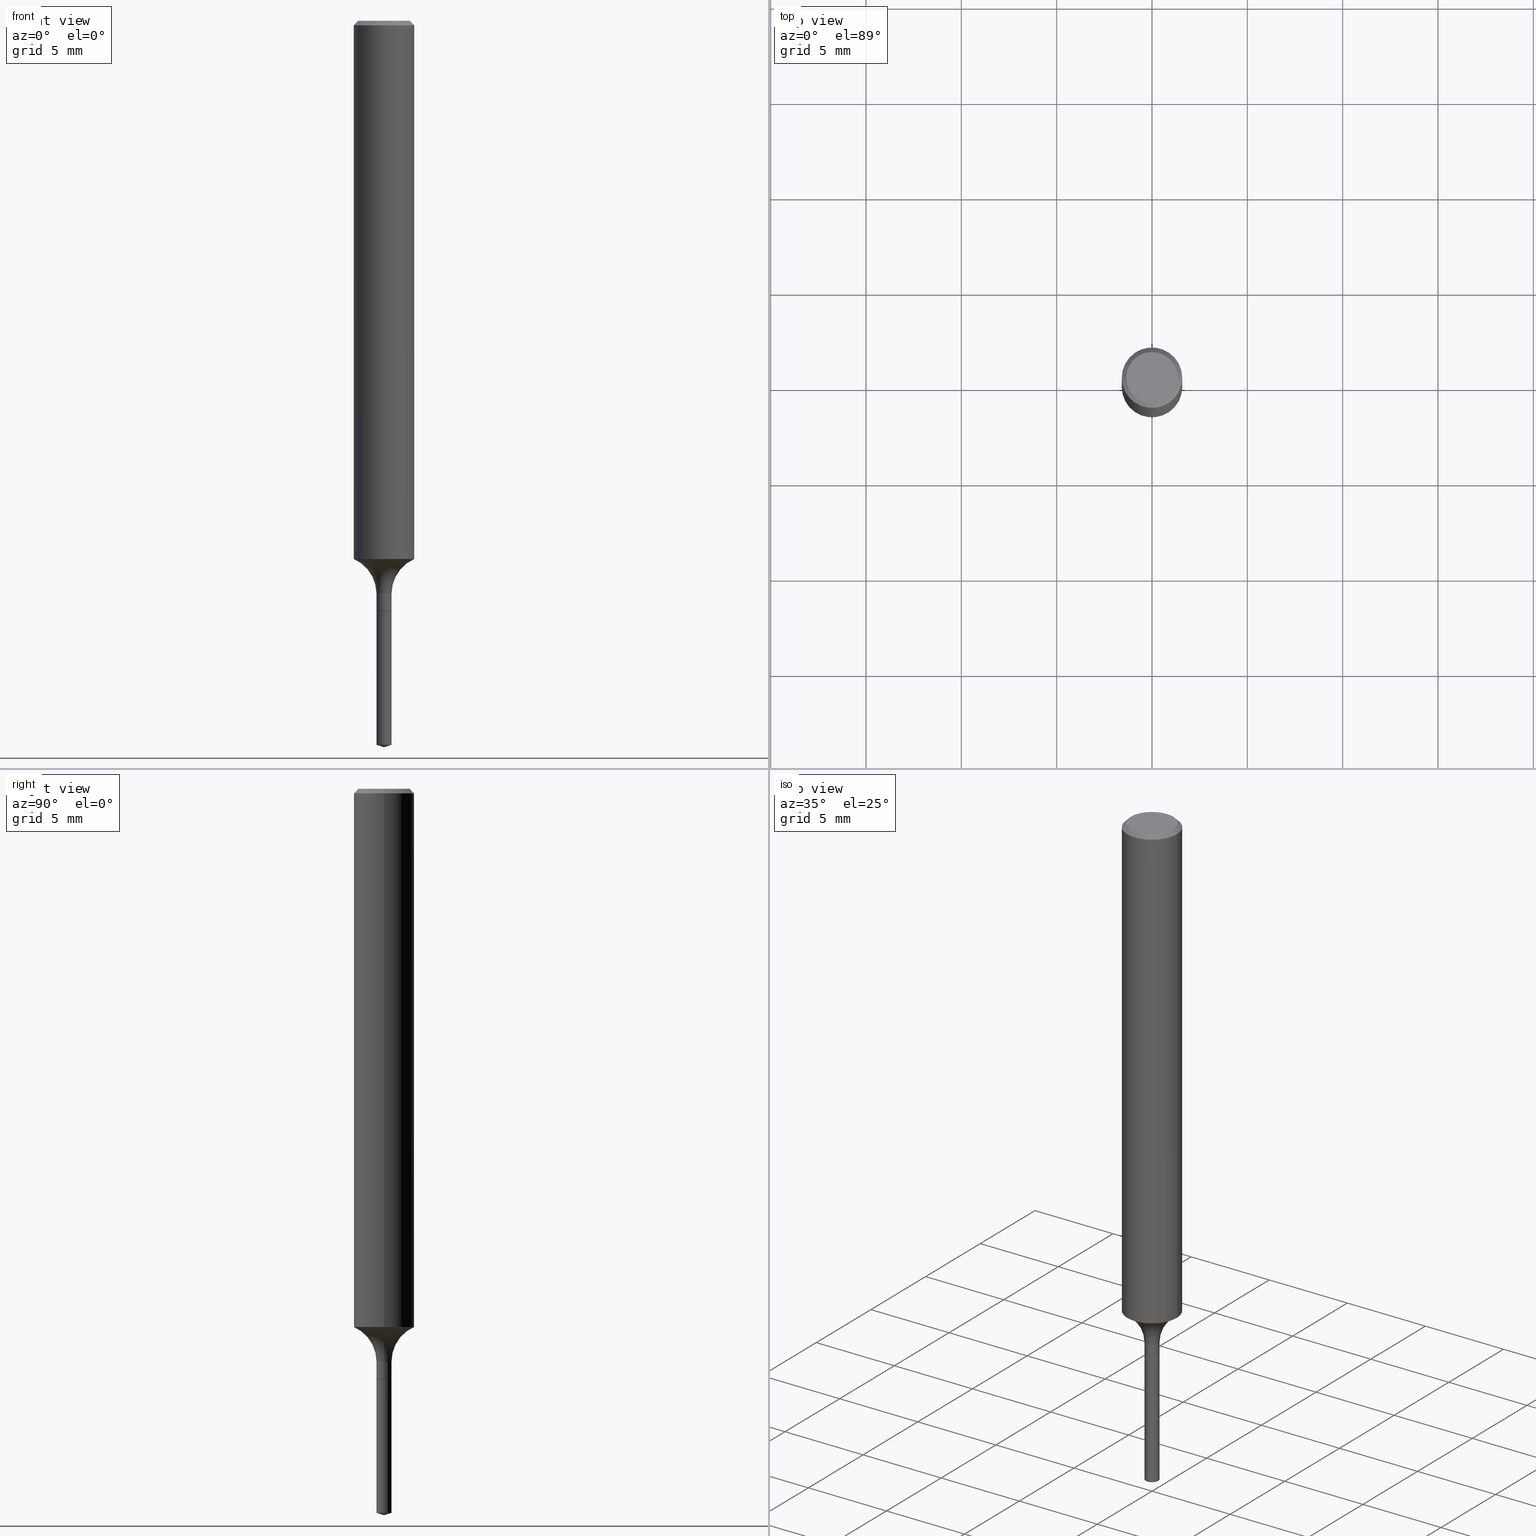
[diagram: canonical four-view strip — front | top / right | iso, engineering-drawing reading convention]
A machine part, canonical four-view strip (front | top / right | iso — engineering-drawing reading convention). The complete STEP part file that produces these views, byte-faithful:
ISO-10303-21;
HEADER;
FILE_DESCRIPTION (( 'STEP AP203' ),
    '1' );
FILE_NAME ('52301.STEP',
    '2024-04-19T13:29:42',
    ( '' ),
    ( '' ),
    'SwSTEP 2.0',
    'SolidWorks 2023',
    '' );
FILE_SCHEMA (( 'CONFIG_CONTROL_DESIGN' ));
ENDSEC;

DATA;
#1 = CONICAL_SURFACE ( 'NONE', #16, 0.01509999999999999884, 0.7853981633973949883 ) ;
#2 = DIRECTION ( 'NONE',  ( -2.445468806185136597E-29, 3.491481338843145583E-15, 1.000000000000000000 ) ) ;
#3 = CARTESIAN_POINT ( 'NONE',  ( 2.892500503955779168E-29, -4.129724127583672136E-15, -1.182799999999999851 ) ) ;
#4 = DIRECTION ( 'NONE',  ( -2.445468806185136877E-29, 3.491481338843145188E-15, 1.000000000000000000 ) ) ;
#5 = CC_DESIGN_PERSON_AND_ORGANIZATION_ASSIGNMENT ( #255, #429, ( #329 ) ) ;
#6 = CARTESIAN_POINT ( 'NONE',  ( 0.000000000000000000, 0.000000000000000000, 0.000000000000000000 ) ) ;
#7 = DIRECTION ( 'NONE',  ( -2.404617780644374598E-29, 3.549982332513496351E-15, 1.000000000000000000 ) ) ;
#8 = PERSON_AND_ORGANIZATION ( #333, #158 ) ;
#9 = LINE ( 'NONE', #126, #301 ) ;
#10 = AXIS2_PLACEMENT_3D ( 'NONE', #224, #331, #488 ) ;
#11 = EDGE_CURVE ( 'NONE', #188, #73, #403, .T. ) ;
#12 = FACE_OUTER_BOUND ( 'NONE', #484, .T. ) ;
#13 = DATE_AND_TIME ( #154, #141 ) ;
#14 = FACE_OUTER_BOUND ( 'NONE', #489, .T. ) ;
#15 = AXIS2_PLACEMENT_3D ( 'NONE', #436, #53, #349 ) ;
#16 = AXIS2_PLACEMENT_3D ( 'NONE', #189, #145, #291 ) ;
#17 = PERSON_AND_ORGANIZATION ( #333, #158 ) ;
#18 = DIRECTION ( 'NONE',  ( -2.404617780644374598E-29, 3.549982332513496351E-15, 1.000000000000000000 ) ) ;
#19 = ADVANCED_FACE ( 'NONE', ( #109 ), #370, .T. ) ;
#20 = CARTESIAN_POINT ( 'NONE',  ( 2.980292834097825835E-29, -4.255068307648140826E-15, -1.218699999999999894 ) ) ;
#21 = ORIENTED_EDGE ( 'NONE', *, *, #417, .F. ) ;
#22 = CARTESIAN_POINT ( 'NONE',  ( 2.979070099694733034E-29, -4.253322566978719322E-15, -1.218199999999999950 ) ) ;
#23 = ORIENTED_EDGE ( 'NONE', *, *, #383, .F. ) ;
#24 = PERSON_AND_ORGANIZATION_ROLE ( 'classification_officer' ) ;
#25 = AXIS2_PLACEMENT_3D ( 'NONE', #160, #45, #416 ) ;
#26 = CARTESIAN_POINT ( 'NONE',  ( 0.09359999999999996101, -4.783329434215106738E-15, -1.182800000000000074 ) ) ;
#27 = FACE_OUTER_BOUND ( 'NONE', #487, .T. ) ;
#28 = ADVANCED_FACE ( 'NONE', ( #231 ), #372, .T. ) ;
#29 = EDGE_LOOP ( 'NONE', ( #300, #482, #199 ) ) ;
#30 = DIRECTION ( 'NONE',  ( -2.445468806185136597E-29, 3.491481338843145583E-15, 1.000000000000000000 ) ) ;
#31 = ORIENTED_EDGE ( 'NONE', *, *, #149, .T. ) ;
#32 = PERSON_AND_ORGANIZATION_ROLE ( 'design_supplier' ) ;
#33 = CC_DESIGN_APPROVAL ( #388, ( #78 ) ) ;
#34 = DIRECTION ( 'NONE',  ( 7.105427357601001859E-15, 1.000000000000000000, -3.491481338843145583E-15 ) ) ;
#35 = CARTESIAN_POINT ( 'NONE',  ( 0.000000000000000000, 0.000000000000000000, 0.000000000000000000 ) ) ;
#36 = EDGE_CURVE ( 'NONE', #58, #260, #492, .T. ) ;
#37 = DIRECTION ( 'NONE',  ( -2.445468806185136597E-29, 3.491481338843145583E-15, 1.000000000000000000 ) ) ;
#38 = VERTEX_POINT ( 'NONE', #82 ) ;
#39 = DIRECTION ( 'NONE',  ( 2.445468806185136597E-29, -3.491481338843145583E-15, -1.000000000000000000 ) ) ;
#40 = CARTESIAN_POINT ( 'NONE',  ( -9.101327954815866901E-28, 1.345094056194400877E-13, 37.87007874015748143 ) ) ;
#41 = CLOSED_SHELL ( 'NONE', ( #62, #213, #446, #90, #176 ) ) ;
#42 = DIRECTION ( 'NONE',  ( -6.982962677686265922E-15, -1.000000000000000000, 0.000000000000000000 ) ) ;
#43 =( NAMED_UNIT ( * ) SI_UNIT ( $, .STERADIAN. ) SOLID_ANGLE_UNIT ( ) );
#44 = CYLINDRICAL_SURFACE ( 'NONE', #241, 0.01560000000000000796 ) ;
#45 = DIRECTION ( 'NONE',  ( -2.445468806185136597E-29, 3.491481338843145583E-15, 1.000000000000000000 ) ) ;
#46 = AXIS2_PLACEMENT_3D ( 'NONE', #35, #265, #413 ) ;
#47 = DIRECTION ( 'NONE',  ( 1.000000000000000000, -6.982962677686266711E-15, 4.876176775795935232E-29 ) ) ;
#48 = APPROVAL_PERSON_ORGANIZATION ( #17, #357, #467 ) ;
#49 = COORDINATED_UNIVERSAL_TIME_OFFSET ( 5, 0, .BEHIND. ) ;
#50 = CARTESIAN_POINT ( 'NONE',  ( -1.089342177718759998E-16, -0.01560000000000426323, -1.218699999999999894 ) ) ;
#51 = ORIENTED_EDGE ( 'NONE', *, *, #312, .F. ) ;
#52 = EDGE_CURVE ( 'NONE', #260, #58, #470, .T. ) ;
#53 = DIRECTION ( 'NONE',  ( -2.445468806185136597E-29, 3.491481338843145583E-15, 1.000000000000000000 ) ) ;
#54 = ORIENTED_EDGE ( 'NONE', *, *, #183, .F. ) ;
#55 = APPROVAL_PERSON_ORGANIZATION ( #465, #388, #411 ) ;
#56 = DIRECTION ( 'NONE',  ( -2.445468806185136877E-29, 3.491481338843145188E-15, 1.000000000000000000 ) ) ;
#57 = DIRECTION ( 'NONE',  ( -2.445468806185136597E-29, 3.491481338843145583E-15, 1.000000000000000000 ) ) ;
#58 = VERTEX_POINT ( 'NONE', #235 ) ;
#59 = DATE_TIME_ROLE ( 'classification_date' ) ;
#60 = PLANE ( 'NONE',  #478 ) ;
#61 = ORIENTED_EDGE ( 'NONE', *, *, #325, .F. ) ;
#62 = ADVANCED_FACE ( 'NONE', ( #307 ), #44, .T. ) ;
#63 = LOCAL_TIME ( 9, 29, 42.00000000000000000, #354 ) ;
#64 = LINE ( 'NONE', #362, #267 ) ;
#65 = DIRECTION ( 'NONE',  ( -6.982962677686266711E-15, -1.000000000000000000, 3.491481338843145583E-15 ) ) ;
#66 = PERSON_AND_ORGANIZATION ( #333, #158 ) ;
#67 = DIRECTION ( 'NONE',  ( -1.000000000000000000, 6.982962677686265922E-15, -4.876176775795935793E-29 ) ) ;
#68 = ORIENTED_EDGE ( 'NONE', *, *, #427, .T. ) ;
#69 = FACE_OUTER_BOUND ( 'NONE', #228, .T. ) ;
#70 = ADVANCED_FACE ( 'NONE', ( #269 ), #438, .T. ) ;
#71 = ORIENTED_EDGE ( 'NONE', *, *, #11, .F. ) ;
#72 = CC_DESIGN_SECURITY_CLASSIFICATION ( #187, ( #329 ) ) ;
#73 = VERTEX_POINT ( 'NONE', #233 ) ;
#74 = PRODUCT_RELATED_PRODUCT_CATEGORY ( 'detail', '', ( #273 ) ) ;
#75 = DIRECTION ( 'NONE',  ( -2.404617780644374598E-29, 3.549982332513496351E-15, 1.000000000000000000 ) ) ;
#76 = DIRECTION ( 'NONE',  ( -6.982962677686265922E-15, -1.000000000000000000, 0.000000000000000000 ) ) ;
#77 = CARTESIAN_POINT ( 'NONE',  ( 2.292627005798581499E-31, -3.273263755165472033E-17, -0.009375000000000065573 ) ) ;
#78 = PRODUCT_DEFINITION ( 'UNKNOWN', '', #329, #473 ) ;
#79 = DIRECTION ( 'NONE',  ( -2.445468806185136597E-29, 3.491481338843145583E-15, 1.000000000000000000 ) ) ;
#80 = VECTOR ( 'NONE', #310, 39.37007874015748143 ) ;
#81 = AXIS2_PLACEMENT_3D ( 'NONE', #272, #159, #335 ) ;
#82 = CARTESIAN_POINT ( 'NONE',  ( 0.01509999999999999884, -4.360511044081204375E-15, -1.218699999999999894 ) ) ;
#83 = APPLICATION_PROTOCOL_DEFINITION ( 'international standard', 'config_control_design', 1994, #167 ) ;
#84 = DIRECTION ( 'NONE',  ( -0.7071067811865098252, 7.493145998870218476E-15, 0.7071067811865852093 ) ) ;
#85 = ADVANCED_FACE ( 'NONE', ( #338 ), #120, .T. ) ;
#86 = AXIS2_PLACEMENT_3D ( 'NONE', #456, #205, #305 ) ;
#87 = LOCAL_TIME ( 9, 29, 42.00000000000000000, #49 ) ;
#88 = FACE_OUTER_BOUND ( 'NONE', #287, .T. ) ;
#89 = ORIENTED_EDGE ( 'NONE', *, *, #218, .F. ) ;
#90 = ADVANCED_FACE ( 'NONE', ( #116 ), #170, .T. ) ;
#91 = PERSON_AND_ORGANIZATION ( #333, #158 ) ;
#92 = ORIENTED_EDGE ( 'NONE', *, *, #164, .F. ) ;
#93 = LINE ( 'NONE', #393, #285 ) ;
#94 = CONICAL_SURFACE ( 'NONE', #412, 124.8659371009094627, 1.265363707695878803 ) ;
#95 = ORIENTED_EDGE ( 'NONE', *, *, #164, .T. ) ;
#96 = LOCAL_TIME ( 9, 29, 42.00000000000000000, #424 ) ;
#97 = EDGE_LOOP ( 'NONE', ( #51, #258, #225, #450 ) ) ;
#98 = CARTESIAN_POINT ( 'NONE',  ( 2.717571862183751138E-29, -3.879972388027042486E-15, -1.111268258793735253 ) ) ;
#99 = FACE_OUTER_BOUND ( 'NONE', #252, .T. ) ;
#100 = EDGE_CURVE ( 'NONE', #191, #135, #384, .T. ) ;
#101 = CARTESIAN_POINT ( 'NONE',  ( -0.09359999999999996101, -3.464656126912219428E-15, -1.182800000000000074 ) ) ;
#102 = VERTEX_POINT ( 'NONE', #114 ) ;
#103 = CIRCLE ( 'NONE', #86, 0.06250000000000000000 ) ;
#104 = AXIS2_PLACEMENT_3D ( 'NONE', #101, #34, #441 ) ;
#105 = DIRECTION ( 'NONE',  ( -2.445468806185136597E-29, 3.491481338843145583E-15, 1.000000000000000000 ) ) ;
#106 = ORIENTED_EDGE ( 'NONE', *, *, #360, .T. ) ;
#107 = EDGE_CURVE ( 'NONE', #193, #191, #423, .T. ) ;
#108 = CARTESIAN_POINT ( 'NONE',  ( 2.980292834097825835E-29, -4.255068307648140826E-15, -1.218699999999999894 ) ) ;
#109 = FACE_OUTER_BOUND ( 'NONE', #364, .T. ) ;
#110 = CARTESIAN_POINT ( 'NONE',  ( 3.606926670966561897E-29, -5.324973498770243540E-15, -1.499999999999999778 ) ) ;
#111 = VERTEX_POINT ( 'NONE', #163 ) ;
#112 = CIRCLE ( 'NONE', #266, 0.01509999999999999884 ) ;
#113 = DIRECTION ( 'NONE',  ( 1.000000000000000000, -6.982962677686262766E-15, 0.000000000000000000 ) ) ;
#114 = CARTESIAN_POINT ( 'NONE',  ( 0.01559999999999998194, -4.362256784750625089E-15, -1.218199999999999950 ) ) ;
#115 = DIRECTION ( 'NONE',  ( 0.000000000000000000, 0.000000000000000000, 1.000000000000000000 ) ) ;
#116 = FACE_OUTER_BOUND ( 'NONE', #455, .T. ) ;
#117 = EDGE_CURVE ( 'NONE', #102, #73, #9, .T. ) ;
#118 = DIRECTION ( 'NONE',  ( -6.982962677686266711E-15, -1.000000000000000000, 3.570530145508838983E-15 ) ) ;
#119 = APPROVAL_STATUS ( 'not_yet_approved' ) ;
#120 = CONICAL_SURFACE ( 'NONE', #323, 0.06250000000000000000, 0.7853981633974471688 ) ;
#121 = CONICAL_SURFACE ( 'NONE', #464, 124.8659371009094627, 1.265363707695878803 ) ;
#122 = CARTESIAN_POINT ( 'NONE',  ( 3.644884315839404491E-29, -5.236217177756448257E-15, -1.495081338893487599 ) ) ;
#123 = PERSON_AND_ORGANIZATION ( #333, #158 ) ;
#124 = APPROVAL_STATUS ( 'not_yet_approved' ) ;
#125 = EDGE_CURVE ( 'NONE', #135, #490, #103, .T. ) ;
#126 = CARTESIAN_POINT ( 'NONE',  ( 0.01559999999999998020, -1.089342177719056191E-16, 7.606835770241649565E-31 ) ) ;
#127 = DATE_AND_TIME ( #171, #425 ) ;
#128 = CARTESIAN_POINT ( 'NONE',  ( 2.980292834097825835E-29, -4.255068307648140826E-15, -1.218699999999999894 ) ) ;
#129 = CIRCLE ( 'NONE', #215, 0.06250000000000012490 ) ;
#130 = CALENDAR_DATE ( 2024, 19, 4 ) ;
#131 = DIRECTION ( 'NONE',  ( 2.404617780644374037E-29, -3.549982332513496745E-15, -1.000000000000000000 ) ) ;
#132 = CIRCLE ( 'NONE', #195, 0.01559999999999999928 ) ;
#133 = APPROVAL_STATUS ( 'not_yet_approved' ) ;
#134 = CARTESIAN_POINT ( 'NONE',  ( -0.01559999999999998367, -4.080678680502620475E-15, -1.218199999999999950 ) ) ;
#135 = VERTEX_POINT ( 'NONE', #458 ) ;
#136 = PERSON_AND_ORGANIZATION_ROLE ( 'creator' ) ;
#137 = LINE ( 'NONE', #206, #221 ) ;
#138 = CARTESIAN_POINT ( 'NONE',  ( 0.05312499999999999861, -4.129888592719941322E-16, -3.903561672281913772E-17 ) ) ;
#139 = CARTESIAN_POINT ( 'NONE',  ( 3.707370074526577313E-29, -5.182383176798130959E-15, -1.499999999999999778 ) ) ;
#140 = AXIS2_PLACEMENT_3D ( 'NONE', #365, #57, #324 ) ;
#141 = LOCAL_TIME ( 9, 29, 42.00000000000000000, #371 ) ;
#142 = EDGE_CURVE ( 'NONE', #390, #214, #463, .T. ) ;
#143 = VERTEX_POINT ( 'NONE', #209 ) ;
#144 = ORIENTED_EDGE ( 'NONE', *, *, #107, .F. ) ;
#145 = DIRECTION ( 'NONE',  ( -2.445468806185136597E-29, 3.491481338843145583E-15, 1.000000000000000000 ) ) ;
#146 = CARTESIAN_POINT ( 'NONE',  ( 0.06250000000000000000, -4.615137624123754923E-16, -0.009375000000000065573 ) ) ;
#147 = ORIENTED_EDGE ( 'NONE', *, *, #36, .T. ) ;
#148 = AXIS2_PLACEMENT_3D ( 'NONE', #378, #7, #42 ) ;
#149 = EDGE_CURVE ( 'NONE', #143, #111, #391, .T. ) ;
#150 = DIRECTION ( 'NONE',  ( -2.445468806185136597E-29, 3.491481338843145583E-15, 1.000000000000000000 ) ) ;
#151 = ORIENTED_EDGE ( 'NONE', *, *, #52, .F. ) ;
#152 = DIRECTION ( 'NONE',  ( 1.000000000000000000, -6.982962677686266711E-15, 0.000000000000000000 ) ) ;
#153 = ORIENTED_EDGE ( 'NONE', *, *, #244, .T. ) ;
#154 = CALENDAR_DATE ( 2024, 19, 4 ) ;
#155 = APPLICATION_CONTEXT ( 'configuration controlled 3d designs of mechanical parts and assemblies' ) ;
#156 = ORIENTED_EDGE ( 'NONE', *, *, #339, .F. ) ;
#157 = VECTOR ( 'NONE', #278, 39.37007874015748143 ) ;
#158 = ORGANIZATION ( 'UNSPECIFIED', 'UNSPECIFIED', '' ) ;
#159 = DIRECTION ( 'NONE',  ( -2.445468806185136597E-29, 3.491481338843145583E-15, 1.000000000000000000 ) ) ;
#160 = CARTESIAN_POINT ( 'NONE',  ( 9.546038302585977863E-46, -1.362921273379660165E-31, -3.903561672282188024E-17 ) ) ;
#161 = CARTESIAN_POINT ( 'NONE',  ( 2.892500503955779729E-29, -4.129724127583672925E-15, -1.182800000000000074 ) ) ;
#162 = DIRECTION ( 'NONE',  ( 0.7071067811865098252, -2.468850131081862236E-15, 0.7071067811865852093 ) ) ;
#163 = CARTESIAN_POINT ( 'NONE',  ( 1.108446667786122443E-16, 0.01559999999999574054, -1.218699999999999894 ) ) ;
#164 = EDGE_CURVE ( 'NONE', #38, #102, #137, .T. ) ;
#165 = PERSON_AND_ORGANIZATION_ROLE ( 'design_owner' ) ;
#166 = VECTOR ( 'NONE', #480, 39.37007874015748143 ) ;
#167 = APPLICATION_CONTEXT ( 'configuration controlled 3d designs of mechanical parts and assemblies' ) ;
#168 = CIRCLE ( 'NONE', #279, 0.06250000000000000000 ) ;
#169 = UNCERTAINTY_MEASURE_WITH_UNIT (LENGTH_MEASURE( 1.000000000000000082E-05 ), #299, 'distance_accuracy_value', 'NONE');
#170 = CYLINDRICAL_SURFACE ( 'NONE', #148, 0.01560000000000000796 ) ;
#171 = CALENDAR_DATE ( 2024, 19, 4 ) ;
#172 = CARTESIAN_POINT ( 'NONE',  ( -0.05312499999999999861, 3.873362110279098601E-16, -3.903561672282453649E-17 ) ) ;
#173 = DIRECTION ( 'NONE',  ( -2.404617780644374598E-29, 3.549982332513496351E-15, 1.000000000000000000 ) ) ;
#174 = AXIS2_PLACEMENT_3D ( 'NONE', #342, #344, #303 ) ;
#175 = VECTOR ( 'NONE', #263, 39.37007874015748854 ) ;
#176 = ADVANCED_FACE ( 'NONE', ( #386 ), #348, .F. ) ;
#177 = CARTESIAN_POINT ( 'NONE',  ( -9.101327954815866901E-28, 1.345094056194400877E-13, 37.87007874015748143 ) ) ;
#178 = LINE ( 'NONE', #319, #203 ) ;
#179 = ORIENTED_EDGE ( 'NONE', *, *, #52, .T. ) ;
#180 = CALENDAR_DATE ( 2024, 19, 4 ) ;
#181 = DIRECTION ( 'NONE',  ( 1.000000000000000000, -6.982962677686265922E-15, 4.876176775795935793E-29 ) ) ;
#182 = ORIENTED_EDGE ( 'NONE', *, *, #100, .F. ) ;
#183 = EDGE_CURVE ( 'NONE', #260, #143, #280, .T. ) ;
#184 = CARTESIAN_POINT ( 'NONE',  ( 3.606926670966561897E-29, -5.324973498770243540E-15, -1.499999999999999778 ) ) ;
#185 = CIRCLE ( 'NONE', #274, 0.06250000000000012490 ) ;
#186 = VERTEX_POINT ( 'NONE', #352 ) ;
#187 = SECURITY_CLASSIFICATION ( '', '', #346 ) ;
#188 = VERTEX_POINT ( 'NONE', #243 ) ;
#189 = CARTESIAN_POINT ( 'NONE',  ( 2.980292834097825835E-29, -4.255068307648140826E-15, -1.218699999999999894 ) ) ;
#190 = EDGE_CURVE ( 'NONE', #188, #490, #178, .T. ) ;
#191 = VERTEX_POINT ( 'NONE', #172 ) ;
#192 = DIRECTION ( 'NONE',  ( -2.445468806185136597E-29, 3.491481338843145583E-15, 1.000000000000000000 ) ) ;
#193 = VERTEX_POINT ( 'NONE', #138 ) ;
#194 = AXIS2_PLACEMENT_3D ( 'NONE', #400, #288, #444 ) ;
#195 = AXIS2_PLACEMENT_3D ( 'NONE', #230, #418, #76 ) ;
#196 = DIRECTION ( 'NONE',  ( -2.445468806185136877E-29, 3.491481338843145188E-15, 1.000000000000000000 ) ) ;
#197 = ORIENTED_EDGE ( 'NONE', *, *, #149, .F. ) ;
#198 = FACE_OUTER_BOUND ( 'NONE', #29, .T. ) ;
#199 = ORIENTED_EDGE ( 'NONE', *, *, #36, .F. ) ;
#200 = ADVANCED_FACE ( 'NONE', ( #12 ), #474, .T. ) ;
#201 = DIRECTION ( 'NONE',  ( -2.445468806185136597E-29, 3.491481338843145583E-15, 1.000000000000000000 ) ) ;
#202 = CARTESIAN_POINT ( 'NONE',  ( -0.06250000000000000000, 4.037025298037369491E-16, -0.009375000000000065573 ) ) ;
#203 = VECTOR ( 'NONE', #282, 39.37007874015748143 ) ;
#204 = DIRECTION ( 'NONE',  ( -2.404617780644374598E-29, 3.549982332513496351E-15, 1.000000000000000000 ) ) ;
#205 = DIRECTION ( 'NONE',  ( -2.445468806185136597E-29, 3.491481338843145583E-15, 1.000000000000000000 ) ) ;
#206 = CARTESIAN_POINT ( 'NONE',  ( 0.01509999999999999884, -4.360511044081204375E-15, -1.218699999999999894 ) ) ;
#207 = DIRECTION ( 'NONE',  ( -6.982962677686265922E-15, -1.000000000000000000, 0.000000000000000000 ) ) ;
#208 = EDGE_CURVE ( 'NONE', #214, #315, #93, .T. ) ;
#209 = CARTESIAN_POINT ( 'NONE',  ( -1.089342177718759382E-16, -0.01560000000000425456, -1.218699999999999894 ) ) ;
#210 = APPROVAL_ROLE ( '' ) ;
#211 = ADVANCED_BREP_SHAPE_REPRESENTATION ( '52301', ( #311, #481, #405 ), #385 ) ;
#212 = ORIENTED_EDGE ( 'NONE', *, *, #190, .F. ) ;
#213 = ADVANCED_FACE ( 'NONE', ( #14 ), #94, .T. ) ;
#214 = VERTEX_POINT ( 'NONE', #134 ) ;
#215 = AXIS2_PLACEMENT_3D ( 'NONE', #314, #469, #430 ) ;
#216 = CIRCLE ( 'NONE', #363, 0.01559999999999998194 ) ;
#217 = ORIENTED_EDGE ( 'NONE', *, *, #107, .T. ) ;
#218 = EDGE_CURVE ( 'NONE', #186, #188, #129, .T. ) ;
#219 = APPROVAL_DATE_TIME ( #443, #271 ) ;
#220 = DIRECTION ( 'NONE',  ( 1.000000000000000000, -6.982962677686281699E-15, 0.000000000000000000 ) ) ;
#221 = VECTOR ( 'NONE', #162, 39.37007874015748143 ) ;
#222 = DIRECTION ( 'NONE',  ( 1.000000000000000000, -6.982962677686264344E-15, 0.000000000000000000 ) ) ;
#223 = CIRCLE ( 'NONE', #10, 0.01559999999999998194 ) ;
#224 = CARTESIAN_POINT ( 'NONE',  ( 2.979070099694733034E-29, -4.253322566978719322E-15, -1.218199999999999950 ) ) ;
#225 = ORIENTED_EDGE ( 'NONE', *, *, #11, .T. ) ;
#226 = EDGE_LOOP ( 'NONE', ( #289, #247, #368, #284 ) ) ;
#227 = DIRECTION ( 'NONE',  ( 6.776566513254229738E-15, 0.9537169507482249342, 0.3007057995042793919 ) ) ;
#228 = EDGE_LOOP ( 'NONE', ( #394, #217 ) ) ;
#229 = APPROVAL_PERSON_ORGANIZATION ( #420, #271, #210 ) ;
#230 = CARTESIAN_POINT ( 'NONE',  ( 2.980292834097825835E-29, -4.255068307648140826E-15, -1.218699999999999894 ) ) ;
#231 = FACE_OUTER_BOUND ( 'NONE', #322, .T. ) ;
#232 = ADVANCED_FACE ( 'NONE', ( #88 ), #245, .F. ) ;
#233 = CARTESIAN_POINT ( 'NONE',  ( 0.01559999999999997673, -4.238658345355577903E-15, -1.182799999999999851 ) ) ;
#234 = DIRECTION ( 'NONE',  ( -2.445468806185136597E-29, 3.491481338843145583E-15, 1.000000000000000000 ) ) ;
#235 = CARTESIAN_POINT ( 'NONE',  ( 1.108446667786121827E-16, 0.01559999999999478124, -1.495081338893487599 ) ) ;
#236 = VECTOR ( 'NONE', #84, 39.37007874015748143 ) ;
#237 = CIRCLE ( 'NONE', #286, 0.05312499999999999861 ) ;
#238 = EDGE_CURVE ( 'NONE', #298, #58, #321, .T. ) ;
#239 = MECHANICAL_CONTEXT ( 'NONE', #167, 'mechanical' ) ;
#240 = DIRECTION ( 'NONE',  ( -6.982962677686265922E-15, -1.000000000000000000, 0.000000000000000000 ) ) ;
#241 = AXIS2_PLACEMENT_3D ( 'NONE', #419, #466, #207 ) ;
#242 = CIRCLE ( 'NONE', #104, 0.07800000000000006928 ) ;
#243 = CARTESIAN_POINT ( 'NONE',  ( 0.06250000000000022204, -4.316407555382434945E-15, -1.111268258793735253 ) ) ;
#244 = EDGE_CURVE ( 'NONE', #193, #490, #332, .T. ) ;
#245 = PLANE ( 'NONE',  #355 ) ;
#246 = ORIENTED_EDGE ( 'NONE', *, *, #339, .T. ) ;
#247 = ORIENTED_EDGE ( 'NONE', *, *, #208, .T. ) ;
#248 = AXIS2_PLACEMENT_3D ( 'NONE', #122, #75, #240 ) ;
#249 = ADVANCED_FACE ( 'NONE', ( #99 ), #292, .T. ) ;
#250 = CIRCLE ( 'NONE', #392, 0.01559999999999997673 ) ;
#251 = EDGE_LOOP ( 'NONE', ( #89, #452, #437, #71 ) ) ;
#252 = EDGE_LOOP ( 'NONE', ( #475, #477, #21, #92 ) ) ;
#253 = CARTESIAN_POINT ( 'NONE',  ( -0.01559999999999997673, -4.080678680502620475E-15, -1.182799999999999851 ) ) ;
#254 = ORIENTED_EDGE ( 'NONE', *, *, #397, .F. ) ;
#255 = PERSON_AND_ORGANIZATION ( #333, #158 ) ;
#256 = LINE ( 'NONE', #404, #259 ) ;
#257 = TOROIDAL_SURFACE ( 'NONE', #486, 0.09359999999999996101, 0.07800000000000006928 ) ;
#258 = ORIENTED_EDGE ( 'NONE', *, *, #296, .F. ) ;
#259 = VECTOR ( 'NONE', #261, 39.37007874015748143 ) ;
#260 = VERTEX_POINT ( 'NONE', #359 ) ;
#261 = DIRECTION ( 'NONE',  ( -2.404617780644374598E-29, 3.549982332513496745E-15, 1.000000000000000000 ) ) ;
#262 = ORIENTED_EDGE ( 'NONE', *, *, #244, .F. ) ;
#263 = DIRECTION ( 'NONE',  ( -6.659769872151605267E-15, -0.9537169507482228248, 0.3007057995042861642 ) ) ;
#264 = ADVANCED_FACE ( 'NONE', ( #483 ), #345, .F. ) ;
#265 = DIRECTION ( 'NONE',  ( -2.445468806185136597E-29, 3.491481338843145583E-15, 1.000000000000000000 ) ) ;
#266 = AXIS2_PLACEMENT_3D ( 'NONE', #108, #30, #220 ) ;
#267 = VECTOR ( 'NONE', #196, 39.37007874015748143 ) ;
#268 = DIRECTION ( 'NONE',  ( -2.445468806185136597E-29, 3.491481338843145583E-15, 1.000000000000000000 ) ) ;
#269 = FACE_OUTER_BOUND ( 'NONE', #408, .T. ) ;
#270 = DIRECTION ( 'NONE',  ( 1.000000000000000000, -6.982962677686260400E-15, 0.000000000000000000 ) ) ;
#271 = APPROVAL ( #119, 'UNSPECIFIED' ) ;
#272 = CARTESIAN_POINT ( 'NONE',  ( 0.000000000000000000, 0.000000000000000000, 0.000000000000000000 ) ) ;
#273 = PRODUCT ( '52301', '52301', '', ( #239 ) ) ;
#274 = AXIS2_PLACEMENT_3D ( 'NONE', #98, #192, #328 ) ;
#275 = CARTESIAN_POINT ( 'NONE',  ( -0.01509999999999999884, -4.147776354548365681E-15, -1.218699999999999894 ) ) ;
#276 = CARTESIAN_POINT ( 'NONE',  ( 2.980292834097825835E-29, -4.255068307648140826E-15, -1.218699999999999894 ) ) ;
#277 = ADVANCED_FACE ( 'NONE', ( #69 ), #60, .F. ) ;
#278 = DIRECTION ( 'NONE',  ( -2.404617780644374598E-29, 3.549982332513496745E-15, 1.000000000000000000 ) ) ;
#279 = AXIS2_PLACEMENT_3D ( 'NONE', #448, #105, #152 ) ;
#280 = LINE ( 'NONE', #50, #157 ) ;
#281 = EDGE_LOOP ( 'NONE', ( #262, #366, #431, #336 ) ) ;
#282 = DIRECTION ( 'NONE',  ( -2.445468806185136877E-29, 3.491481338843145188E-15, 1.000000000000000000 ) ) ;
#283 = CC_DESIGN_DATE_AND_TIME_ASSIGNMENT ( #398, #59, ( #187 ) ) ;
#284 = ORIENTED_EDGE ( 'NONE', *, *, #117, .F. ) ;
#285 = VECTOR ( 'NONE', #56, 39.37007874015748143 ) ;
#286 = AXIS2_PLACEMENT_3D ( 'NONE', #306, #79, #376 ) ;
#287 = EDGE_LOOP ( 'NONE', ( #406, #61 ) ) ;
#288 = DIRECTION ( 'NONE',  ( -2.445468806185136597E-29, 3.491481338843145583E-15, 1.000000000000000000 ) ) ;
#289 = ORIENTED_EDGE ( 'NONE', *, *, #417, .T. ) ;
#290 = EDGE_CURVE ( 'NONE', #38, #390, #112, .T. ) ;
#291 = DIRECTION ( 'NONE',  ( 1.000000000000000000, -6.982962677686281699E-15, 0.000000000000000000 ) ) ;
#292 = CONICAL_SURFACE ( 'NONE', #194, 0.01509999999999999884, 0.7853981633973949883 ) ;
#293 = ORIENTED_EDGE ( 'NONE', *, *, #325, .T. ) ;
#294 = DIRECTION ( 'NONE',  ( 2.438088387897960049E-29, -3.491481338843145188E-15, -1.000000000000000000 ) ) ;
#295 = ORIENTED_EDGE ( 'NONE', *, *, #427, .F. ) ;
#296 = EDGE_CURVE ( 'NONE', #188, #186, #185, .T. ) ;
#297 = CARTESIAN_POINT ( 'NONE',  ( -0.01509999999999999884, -4.145127127374255269E-15, -1.218699999999999894 ) ) ;
#298 = VERTEX_POINT ( 'NONE', #184 ) ;
#299 =( CONVERSION_BASED_UNIT ( 'INCH', #381 ) LENGTH_UNIT ( ) NAMED_UNIT ( #414 ) );
#300 = ORIENTED_EDGE ( 'NONE', *, *, #238, .F. ) ;
#301 = VECTOR ( 'NONE', #4, 39.37007874015748143 ) ;
#302 = CIRCLE ( 'NONE', #379, 0.01509999999999999884 ) ;
#303 = DIRECTION ( 'NONE',  ( -1.000000000000000000, 6.982962677686266711E-15, 0.000000000000000000 ) ) ;
#304 = DIRECTION ( 'NONE',  ( 1.000000000000000000, -6.982962677686265133E-15, 4.883557194083112340E-29 ) ) ;
#305 = DIRECTION ( 'NONE',  ( 1.000000000000000000, -6.982962677686266711E-15, 0.000000000000000000 ) ) ;
#306 = CARTESIAN_POINT ( 'NONE',  ( 9.546038302585977863E-46, -1.362921273379660165E-31, -3.903561672282188024E-17 ) ) ;
#307 = FACE_OUTER_BOUND ( 'NONE', #353, .T. ) ;
#308 = AXIS2_PLACEMENT_3D ( 'NONE', #128, #131, #389 ) ;
#309 = APPLICATION_PROTOCOL_DEFINITION ( 'international standard', 'config_control_design', 1994, #155 ) ;
#310 = DIRECTION ( 'NONE',  ( -0.7071067811865466846, 2.468850131082247989E-15, -0.7071067811865483499 ) ) ;
#311 = MANIFOLD_SOLID_BREP ( 'Body-Move/Copy2[1]', #41 ) ;
#312 = EDGE_CURVE ( 'NONE', #186, #315, #242, .T. ) ;
#313 = CARTESIAN_POINT ( 'NONE',  ( 0.000000000000000000, 0.000000000000000000, 0.000000000000000000 ) ) ;
#314 = CARTESIAN_POINT ( 'NONE',  ( 2.717571862183751138E-29, -3.879972388027042486E-15, -1.111268258793735253 ) ) ;
#315 = VERTEX_POINT ( 'NONE', #253 ) ;
#316 = DATE_AND_TIME ( #395, #87 ) ;
#317 = EDGE_CURVE ( 'NONE', #58, #111, #256, .T. ) ;
#318 = DIRECTION ( 'NONE',  ( -6.982962677686265922E-15, -1.000000000000000000, 0.000000000000000000 ) ) ;
#319 = CARTESIAN_POINT ( 'NONE',  ( 0.06250000000000006939, -4.364351673553921624E-16, 3.047610484872463374E-30 ) ) ;
#320 = ORIENTED_EDGE ( 'NONE', *, *, #360, .F. ) ;
#321 = LINE ( 'NONE', #139, #369 ) ;
#322 = EDGE_LOOP ( 'NONE', ( #449, #106, #445, #435 ) ) ;
#323 = AXIS2_PLACEMENT_3D ( 'NONE', #77, #39, #382 ) ;
#324 = DIRECTION ( 'NONE',  ( 1.000000000000000000, -6.982962677686265133E-15, 4.883557194083112340E-29 ) ) ;
#325 = EDGE_CURVE ( 'NONE', #390, #38, #302, .T. ) ;
#326 = ORIENTED_EDGE ( 'NONE', *, *, #317, .T. ) ;
#327 = ORIENTED_EDGE ( 'NONE', *, *, #317, .F. ) ;
#328 = DIRECTION ( 'NONE',  ( 1.000000000000000000, -6.982962677686264344E-15, 0.000000000000000000 ) ) ;
#329 = PRODUCT_DEFINITION_FORMATION_WITH_SPECIFIED_SOURCE ( 'ANY', '', #273, .NOT_KNOWN. ) ;
#330 = ORIENTED_EDGE ( 'NONE', *, *, #238, .T. ) ;
#331 = DIRECTION ( 'NONE',  ( -2.445468806185136597E-29, 3.491481338843145583E-15, 1.000000000000000000 ) ) ;
#332 = LINE ( 'NONE', #146, #166 ) ;
#333 = PERSON ( 'UNSPECIFIED', 'UNSPECIFIED', 'UNSPECIFIED', ('UNSPECIFIED'), ('UNSPECIFIED'), ('UNSPECIFIED') ) ;
#334 = ORIENTED_EDGE ( 'NONE', *, *, #142, .F. ) ;
#335 = DIRECTION ( 'NONE',  ( 1.000000000000000000, -6.982962677686266711E-15, 4.876176775795935232E-29 ) ) ;
#336 = ORIENTED_EDGE ( 'NONE', *, *, #125, .T. ) ;
#337 =( NAMED_UNIT ( * ) PLANE_ANGLE_UNIT ( ) SI_UNIT ( $, .RADIAN. ) );
#338 = FACE_OUTER_BOUND ( 'NONE', #281, .T. ) ;
#339 = EDGE_CURVE ( 'NONE', #186, #135, #64, .T. ) ;
#340 = DIRECTION ( 'NONE',  ( -2.404617780644374598E-29, 3.549982332513496351E-15, 1.000000000000000000 ) ) ;
#341 = PRODUCT_DEFINITION_SHAPE ( 'NONE', 'NONE',  #78 ) ;
#342 = CARTESIAN_POINT ( 'NONE',  ( 2.292627005798581499E-31, -3.273263755165472033E-17, -0.009375000000000065573 ) ) ;
#343 = SHAPE_DEFINITION_REPRESENTATION ( #341, #211 ) ;
#344 = DIRECTION ( 'NONE',  ( 2.445468806185136597E-29, -3.491481338843145583E-15, -1.000000000000000000 ) ) ;
#345 = TOROIDAL_SURFACE ( 'NONE', #140, 0.09359999999999996101, 0.07800000000000006928 ) ;
#346 = SECURITY_CLASSIFICATION_LEVEL ( 'unclassified' ) ;
#347 = CC_DESIGN_PERSON_AND_ORGANIZATION_ASSIGNMENT ( #8, #165, ( #273 ) ) ;
#348 = PLANE ( 'NONE',  #308 ) ;
#349 = DIRECTION ( 'NONE',  ( 1.000000000000000000, -6.982962677686266711E-15, 4.876176775795935793E-29 ) ) ;
#350 = ORIENTED_EDGE ( 'NONE', *, *, #296, .T. ) ;
#351 = CC_DESIGN_DATE_AND_TIME_ASSIGNMENT ( #127, #459, ( #78 ) ) ;
#352 = CARTESIAN_POINT ( 'NONE',  ( -0.06250000000000022204, -3.435883178176978292E-15, -1.111268258793735253 ) ) ;
#353 = EDGE_LOOP ( 'NONE', ( #179, #326, #197, #54 ) ) ;
#354 = COORDINATED_UNIVERSAL_TIME_OFFSET ( 5, 0, .BEHIND. ) ;
#355 = AXIS2_PLACEMENT_3D ( 'NONE', #20, #434, #181 ) ;
#356 = CIRCLE ( 'NONE', #447, 0.01559999999999997673 ) ;
#357 = APPROVAL ( #133, 'UNSPECIFIED' ) ;
#358 = COORDINATED_UNIVERSAL_TIME_OFFSET ( 5, 0, .BEHIND. ) ;
#359 = CARTESIAN_POINT ( 'NONE',  ( -1.089342177718693931E-16, -0.01560000000000525203, -1.495081338893487599 ) ) ;
#360 = EDGE_CURVE ( 'NONE', #214, #102, #223, .T. ) ;
#361 = AXIS2_PLACEMENT_3D ( 'NONE', #276, #18, #318 ) ;
#362 = CARTESIAN_POINT ( 'NONE',  ( -0.06250000000000006939, 4.440892098500631092E-16, -3.074334431409319267E-30 ) ) ;
#363 = AXIS2_PLACEMENT_3D ( 'NONE', #22, #201, #270 ) ;
#364 = EDGE_LOOP ( 'NONE', ( #156, #442, #387, #396 ) ) ;
#365 = CARTESIAN_POINT ( 'NONE',  ( 2.892500503955779729E-29, -4.129724127583672925E-15, -1.182800000000000074 ) ) ;
#366 = ORIENTED_EDGE ( 'NONE', *, *, #439, .F. ) ;
#367 = CC_DESIGN_PERSON_AND_ORGANIZATION_ASSIGNMENT ( #66, #32, ( #329 ) ) ;
#368 = ORIENTED_EDGE ( 'NONE', *, *, #468, .F. ) ;
#369 = VECTOR ( 'NONE', #227, 39.37007874015748143 ) ;
#370 = CYLINDRICAL_SURFACE ( 'NONE', #46, 0.06250000000000006939 ) ;
#371 = COORDINATED_UNIVERSAL_TIME_OFFSET ( 5, 0, .BEHIND. ) ;
#372 = CYLINDRICAL_SURFACE ( 'NONE', #462, 0.01559999999999998020 ) ;
#373 = CARTESIAN_POINT ( 'NONE',  ( 0.06250000000000000000, -4.691678049070464390E-16, -0.009375000000000065573 ) ) ;
#374 = CARTESIAN_POINT ( 'NONE',  ( 3.644884315839404491E-29, -5.236217177756448257E-15, -1.495081338893487599 ) ) ;
#375 = ADVANCED_FACE ( 'NONE', ( #27 ), #1, .T. ) ;
#376 = DIRECTION ( 'NONE',  ( 1.000000000000000000, -6.982962677686266711E-15, 4.881282378734115390E-29 ) ) ;
#377 = AXIS2_PLACEMENT_3D ( 'NONE', #374, #340, #380 ) ;
#378 = CARTESIAN_POINT ( 'NONE',  ( 2.980292834097825835E-29, -4.255068307648140826E-15, -1.218699999999999894 ) ) ;
#379 = AXIS2_PLACEMENT_3D ( 'NONE', #399, #150, #409 ) ;
#380 = DIRECTION ( 'NONE',  ( -6.982962677686265922E-15, -1.000000000000000000, 0.000000000000000000 ) ) ;
#381 = LENGTH_MEASURE_WITH_UNIT ( LENGTH_MEASURE( 0.02539999999999999897 ), #422 );
#382 = DIRECTION ( 'NONE',  ( -1.000000000000000000, 6.982962677686266711E-15, 0.000000000000000000 ) ) ;
#383 = EDGE_CURVE ( 'NONE', #490, #135, #168, .T. ) ;
#384 = LINE ( 'NONE', #202, #80 ) ;
#385 =( GEOMETRIC_REPRESENTATION_CONTEXT ( 3 ) GLOBAL_UNCERTAINTY_ASSIGNED_CONTEXT ( ( #169 ) ) GLOBAL_UNIT_ASSIGNED_CONTEXT ( ( #299, #337, #43 ) ) REPRESENTATION_CONTEXT ( 'NONE', 'WORKASPACE' ) );
#386 = FACE_OUTER_BOUND ( 'NONE', #401, .T. ) ;
#387 = ORIENTED_EDGE ( 'NONE', *, *, #190, .T. ) ;
#388 = APPROVAL ( #124, 'UNSPECIFIED' ) ;
#389 = DIRECTION ( 'NONE',  ( 6.982962677686265922E-15, 1.000000000000000000, -3.549982332513496745E-15 ) ) ;
#390 = VERTEX_POINT ( 'NONE', #297 ) ;
#391 = CIRCLE ( 'NONE', #361, 0.01559999999999999928 ) ;
#392 = AXIS2_PLACEMENT_3D ( 'NONE', #3, #37, #415 ) ;
#393 = CARTESIAN_POINT ( 'NONE',  ( -0.01559999999999998020, 1.108446667785754883E-16, -7.673538740797642855E-31 ) ) ;
#394 = ORIENTED_EDGE ( 'NONE', *, *, #439, .T. ) ;
#395 = CALENDAR_DATE ( 2024, 19, 4 ) ;
#396 = ORIENTED_EDGE ( 'NONE', *, *, #125, .F. ) ;
#397 = EDGE_CURVE ( 'NONE', #298, #260, #451, .T. ) ;
#398 = DATE_AND_TIME ( #180, #63 ) ;
#399 = CARTESIAN_POINT ( 'NONE',  ( 2.980292834097825835E-29, -4.255068307648140826E-15, -1.218699999999999894 ) ) ;
#400 = CARTESIAN_POINT ( 'NONE',  ( 2.980292834097825835E-29, -4.255068307648140826E-15, -1.218699999999999894 ) ) ;
#401 = EDGE_LOOP ( 'NONE', ( #31, #68 ) ) ;
#402 = CLOSED_SHELL ( 'NONE', ( #249, #70, #200, #454, #476, #28, #264, #19, #85, #277, #232, #375 ) ) ;
#403 = CIRCLE ( 'NONE', #485, 0.07800000000000006928 ) ;
#404 = CARTESIAN_POINT ( 'NONE',  ( 1.108446667786054650E-16, 0.01559999999999575095, -1.218699999999999894 ) ) ;
#405 = AXIS2_PLACEMENT_3D ( 'NONE', #6, #115, #461 ) ;
#406 = ORIENTED_EDGE ( 'NONE', *, *, #290, .F. ) ;
#407 = CC_DESIGN_PERSON_AND_ORGANIZATION_ASSIGNMENT ( #123, #24, ( #187 ) ) ;
#408 = EDGE_LOOP ( 'NONE', ( #144, #153, #440, #182 ) ) ;
#409 = DIRECTION ( 'NONE',  ( 1.000000000000000000, -6.982962677686281699E-15, 0.000000000000000000 ) ) ;
#410 = ORIENTED_EDGE ( 'NONE', *, *, #183, .T. ) ;
#411 = APPROVAL_ROLE ( '' ) ;
#412 = AXIS2_PLACEMENT_3D ( 'NONE', #177, #173, #472 ) ;
#413 = DIRECTION ( 'NONE',  ( 1.000000000000000000, -6.982962677686266711E-15, 4.876176775795935793E-29 ) ) ;
#414 = DIMENSIONAL_EXPONENTS ( 1.000000000000000000, 0.000000000000000000, 0.000000000000000000, 0.000000000000000000, 0.000000000000000000, 0.000000000000000000, 0.000000000000000000 ) ;
#415 = DIRECTION ( 'NONE',  ( 1.000000000000000000, -6.982962677686262766E-15, 0.000000000000000000 ) ) ;
#416 = DIRECTION ( 'NONE',  ( 1.000000000000000000, -6.982962677686266711E-15, 4.881282378734115390E-29 ) ) ;
#417 = EDGE_CURVE ( 'NONE', #102, #214, #216, .T. ) ;
#418 = DIRECTION ( 'NONE',  ( -2.404617780644374598E-29, 3.549982332513496351E-15, 1.000000000000000000 ) ) ;
#419 = CARTESIAN_POINT ( 'NONE',  ( 2.980292834097825835E-29, -4.255068307648140826E-15, -1.218699999999999894 ) ) ;
#420 = PERSON_AND_ORGANIZATION ( #333, #158 ) ;
#421 = APPROVAL_DATE_TIME ( #316, #357 ) ;
#422 =( LENGTH_UNIT ( ) NAMED_UNIT ( * ) SI_UNIT ( $, .METRE. ) );
#423 = CIRCLE ( 'NONE', #25, 0.05312499999999999861 ) ;
#424 = COORDINATED_UNIVERSAL_TIME_OFFSET ( 5, 0, .BEHIND. ) ;
#425 = LOCAL_TIME ( 9, 29, 42.00000000000000000, #358 ) ;
#426 = CYLINDRICAL_SURFACE ( 'NONE', #81, 0.01559999999999998020 ) ;
#427 = EDGE_CURVE ( 'NONE', #111, #143, #132, .T. ) ;
#428 = CC_DESIGN_APPROVAL ( #357, ( #187 ) ) ;
#429 = PERSON_AND_ORGANIZATION_ROLE ( 'creator' ) ;
#430 = DIRECTION ( 'NONE',  ( 1.000000000000000000, -6.982962677686264344E-15, 0.000000000000000000 ) ) ;
#431 = ORIENTED_EDGE ( 'NONE', *, *, #100, .T. ) ;
#432 = EDGE_CURVE ( 'NONE', #315, #73, #356, .T. ) ;
#433 = APPROVAL_DATE_TIME ( #13, #388 ) ;
#434 = DIRECTION ( 'NONE',  ( -2.438088387897960049E-29, 3.491481338843145188E-15, 1.000000000000000000 ) ) ;
#435 = ORIENTED_EDGE ( 'NONE', *, *, #432, .F. ) ;
#436 = CARTESIAN_POINT ( 'NONE',  ( 0.000000000000000000, 0.000000000000000000, 0.000000000000000000 ) ) ;
#437 = ORIENTED_EDGE ( 'NONE', *, *, #432, .T. ) ;
#438 = CONICAL_SURFACE ( 'NONE', #174, 0.06250000000000000000, 0.7853981633974471688 ) ;
#439 = EDGE_CURVE ( 'NONE', #191, #193, #237, .T. ) ;
#440 = ORIENTED_EDGE ( 'NONE', *, *, #383, .T. ) ;
#441 = DIRECTION ( 'NONE',  ( -1.000000000000000000, 7.105427357601005014E-15, 0.000000000000000000 ) ) ;
#442 = ORIENTED_EDGE ( 'NONE', *, *, #218, .T. ) ;
#443 = DATE_AND_TIME ( #130, #96 ) ;
#444 = DIRECTION ( 'NONE',  ( 1.000000000000000000, -6.982962677686281699E-15, 0.000000000000000000 ) ) ;
#445 = ORIENTED_EDGE ( 'NONE', *, *, #117, .T. ) ;
#446 = ADVANCED_FACE ( 'NONE', ( #198 ), #121, .T. ) ;
#447 = AXIS2_PLACEMENT_3D ( 'NONE', #453, #234, #113 ) ;
#448 = CARTESIAN_POINT ( 'NONE',  ( 2.292627005798581499E-31, -3.273263755165472033E-17, -0.009375000000000065573 ) ) ;
#449 = ORIENTED_EDGE ( 'NONE', *, *, #208, .F. ) ;
#450 = ORIENTED_EDGE ( 'NONE', *, *, #468, .T. ) ;
#451 = LINE ( 'NONE', #110, #175 ) ;
#452 = ORIENTED_EDGE ( 'NONE', *, *, #312, .T. ) ;
#453 = CARTESIAN_POINT ( 'NONE',  ( 2.892500503955779168E-29, -4.129724127583672136E-15, -1.182799999999999851 ) ) ;
#454 = ADVANCED_FACE ( 'NONE', ( #491 ), #257, .F. ) ;
#455 = EDGE_LOOP ( 'NONE', ( #327, #147, #410, #295 ) ) ;
#456 = CARTESIAN_POINT ( 'NONE',  ( 2.292627005798581499E-31, -3.273263755165472033E-17, -0.009375000000000065573 ) ) ;
#457 = FACE_OUTER_BOUND ( 'NONE', #226, .T. ) ;
#458 = CARTESIAN_POINT ( 'NONE',  ( -0.06250000000000000000, -1.512263302939284533E-15, -0.009375000000000065573 ) ) ;
#459 = DATE_TIME_ROLE ( 'creation_date' ) ;
#460 = CC_DESIGN_PERSON_AND_ORGANIZATION_ASSIGNMENT ( #91, #136, ( #78 ) ) ;
#461 = DIRECTION ( 'NONE',  ( 1.000000000000000000, 0.000000000000000000, 0.000000000000000000 ) ) ;
#462 = AXIS2_PLACEMENT_3D ( 'NONE', #313, #2, #47 ) ;
#463 = LINE ( 'NONE', #275, #236 ) ;
#464 = AXIS2_PLACEMENT_3D ( 'NONE', #40, #204, #118 ) ;
#465 = PERSON_AND_ORGANIZATION ( #333, #158 ) ;
#466 = DIRECTION ( 'NONE',  ( -2.404617780644374598E-29, 3.549982332513496351E-15, 1.000000000000000000 ) ) ;
#467 = APPROVAL_ROLE ( '' ) ;
#468 = EDGE_CURVE ( 'NONE', #73, #315, #250, .T. ) ;
#469 = DIRECTION ( 'NONE',  ( -2.445468806185136597E-29, 3.491481338843145583E-15, 1.000000000000000000 ) ) ;
#470 = CIRCLE ( 'NONE', #377, 0.01560000000000001663 ) ;
#471 = CC_DESIGN_APPROVAL ( #271, ( #329 ) ) ;
#472 = DIRECTION ( 'NONE',  ( -6.982962677686266711E-15, -1.000000000000000000, 3.570530145508838983E-15 ) ) ;
#473 = DESIGN_CONTEXT ( 'detailed design', #155, 'design' ) ;
#474 = CYLINDRICAL_SURFACE ( 'NONE', #15, 0.06250000000000006939 ) ;
#475 = ORIENTED_EDGE ( 'NONE', *, *, #290, .T. ) ;
#476 = ADVANCED_FACE ( 'NONE', ( #457 ), #426, .T. ) ;
#477 = ORIENTED_EDGE ( 'NONE', *, *, #142, .T. ) ;
#478 = AXIS2_PLACEMENT_3D ( 'NONE', #479, #294, #67 ) ;
#479 = CARTESIAN_POINT ( 'NONE',  ( 4.773019151292988932E-46, -6.814606366898300824E-32, -1.951780836141094012E-17 ) ) ;
#480 = DIRECTION ( 'NONE',  ( 0.7071067811865466846, -7.319954787623252890E-15, -0.7071067811865483499 ) ) ;
#481 = MANIFOLD_SOLID_BREP ( 'Body-Move/Copy2[2]', #402 ) ;
#482 = ORIENTED_EDGE ( 'NONE', *, *, #397, .T. ) ;
#483 = FACE_OUTER_BOUND ( 'NONE', #97, .T. ) ;
#484 = EDGE_LOOP ( 'NONE', ( #350, #246, #23, #212 ) ) ;
#485 = AXIS2_PLACEMENT_3D ( 'NONE', #26, #65, #222 ) ;
#486 = AXIS2_PLACEMENT_3D ( 'NONE', #161, #268, #304 ) ;
#487 = EDGE_LOOP ( 'NONE', ( #334, #293, #95, #320 ) ) ;
#488 = DIRECTION ( 'NONE',  ( 1.000000000000000000, -6.982962677686260400E-15, 0.000000000000000000 ) ) ;
#489 = EDGE_LOOP ( 'NONE', ( #254, #330, #151 ) ) ;
#490 = VERTEX_POINT ( 'NONE', #373 ) ;
#491 = FACE_OUTER_BOUND ( 'NONE', #251, .T. ) ;
#492 = CIRCLE ( 'NONE', #248, 0.01560000000000001663 ) ;
ENDSEC;
END-ISO-10303-21;
